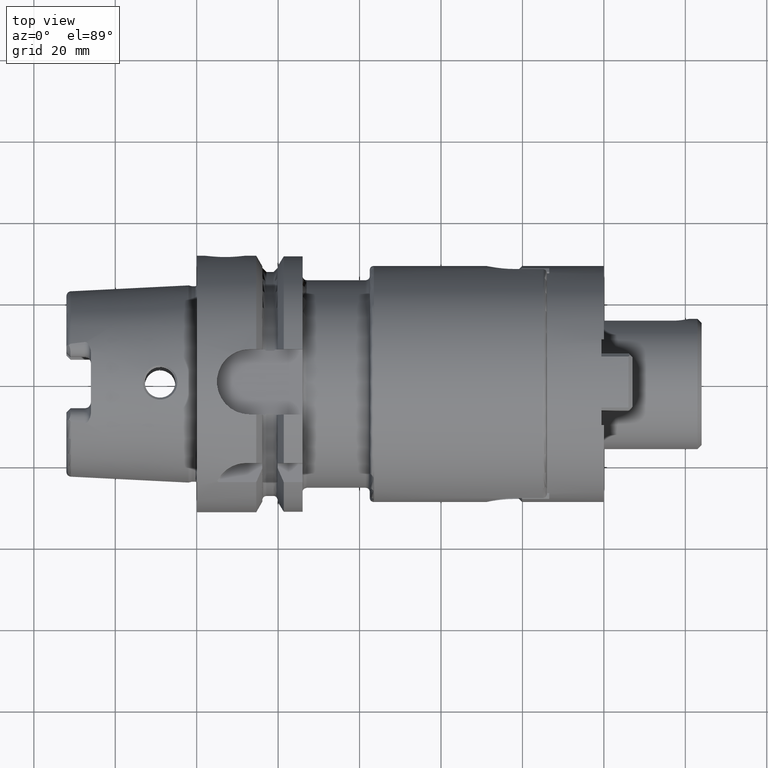
[diagram: clean part render]
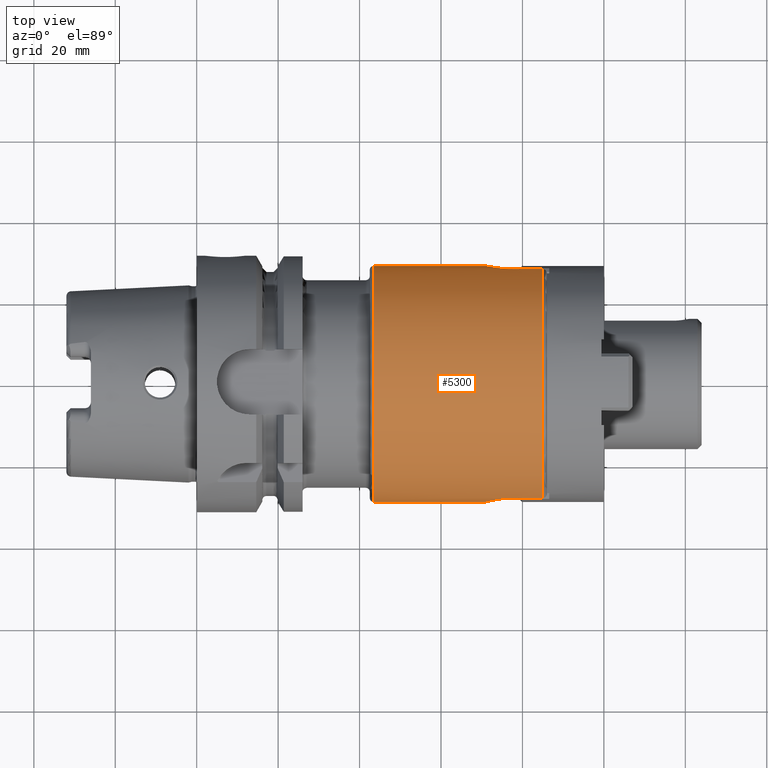
[diagram: same view with one face highlighted and labeled with its STEP entity id]
A machine part, top view. The second image highlights one B-rep face of the part: STEP entity #5300.
In plain terms, the highlighted cylindrical surface (partial cylindrical patch) has radius 29 mm, axis along (1, 0, 0).
Its self-contained STEP definition (entity closure, byte-faithful):
#1513=CARTESIAN_POINT('',(4.35E1,0.E0,0.E0));
#1514=DIRECTION('',(1.E0,0.E0,0.E0));
#1515=DIRECTION('',(0.E0,1.E0,0.E0));
#1516=AXIS2_PLACEMENT_3D('',#1513,#1514,#1515);
#1518=CARTESIAN_POINT('',(7.805E1,2.813001066477E1,7.05E0));
#1519=CARTESIAN_POINT('',(7.776900655547E1,2.813001066477E1,7.05E0));
#1520=CARTESIAN_POINT('',(7.721037658349E1,2.813837687009E1,7.016749676905E0));
#1521=CARTESIAN_POINT('',(7.637512114012E1,2.817581512601E1,6.865641143254E0));
#1522=CARTESIAN_POINT('',(7.556469884006E1,2.823585786882E1,6.615704941775E0));
#1523=CARTESIAN_POINT('',(7.478263891377E1,2.831577611462E1,6.266653400118E0));
#1524=CARTESIAN_POINT('',(7.404844744557E1,2.841030402914E1,5.825563378966E0));
#1525=CARTESIAN_POINT('',(7.336643217082E1,2.851486619548E1,5.292898610357E0));
#1526=CARTESIAN_POINT('',(7.275786607537E1,2.862165826290E1,4.684439074310E0));
#1527=CARTESIAN_POINT('',(7.222514521771E1,2.872543424843E1,4.002545270535E0));
#1528=CARTESIAN_POINT('',(7.178416830068E1,2.881855341471E1,3.268950699602E0));
#1529=CARTESIAN_POINT('',(7.143468525626E1,2.889691723060E1,2.486359021336E0));
#1530=CARTESIAN_POINT('',(7.118472158742E1,2.895543919714E1,1.676359001961E0));
#1531=CARTESIAN_POINT('',(7.103330083314E1,2.899187584106E1,8.403965191555E-1));
#1532=CARTESIAN_POINT('',(7.1E1,2.9E1,2.812016219661E-1));
#1533=CARTESIAN_POINT('',(7.1E1,2.9E1,1.355956455518E-14));
#1535=DIRECTION('',(1.E0,0.E0,0.E0));
#1536=VECTOR('',#1535,6.95E0);
#1537=CARTESIAN_POINT('',(7.805E1,2.813001066477E1,7.05E0));
#1538=LINE('',#1537,#1536);
#1539=CARTESIAN_POINT('',(8.5E1,0.E0,0.E0));
#1540=DIRECTION('',(-1.E0,0.E0,0.E0));
#1541=DIRECTION('',(0.E0,-9.700003677506E-1,2.431034482759E-1));
#1542=AXIS2_PLACEMENT_3D('',#1539,#1540,#1541);
#1544=DIRECTION('',(1.E0,0.E0,0.E0));
#1545=VECTOR('',#1544,6.95E0);
#1546=CARTESIAN_POINT('',(7.805E1,-2.813001066477E1,7.05E0));
#1547=LINE('',#1546,#1545);
#1548=CARTESIAN_POINT('',(7.1E1,-2.9E1,-1.368321328131E-14));
#1549=CARTESIAN_POINT('',(7.1E1,-2.9E1,2.812220679874E-1));
#1550=CARTESIAN_POINT('',(7.103330711335E1,-2.899187432210E1,
8.404467754962E-1));
#1551=CARTESIAN_POINT('',(7.118472684693E1,-2.895543793573E1,1.676379445848E0));
#1552=CARTESIAN_POINT('',(7.143469994552E1,-2.889691385787E1,2.486399055996E0));
#1553=CARTESIAN_POINT('',(7.178418114583E1,-2.881855061333E1,3.268974479794E0));
#1554=CARTESIAN_POINT('',(7.222516446948E1,-2.872543031932E1,4.002573666862E0));
#1555=CARTESIAN_POINT('',(7.275788457570E1,-2.862165486566E1,4.684459317567E0));
#1556=CARTESIAN_POINT('',(7.336644828543E1,-2.851486353950E1,5.292912823822E0));
#1557=CARTESIAN_POINT('',(7.404846414873E1,-2.841030172384E1,5.825574450120E0));
#1558=CARTESIAN_POINT('',(7.478264689309E1,-2.831577521634E1,6.266657373136E0));
#1559=CARTESIAN_POINT('',(7.556470916932E1,-2.823585698224E1,6.615708714385E0));
#1560=CARTESIAN_POINT('',(7.637512335039E1,-2.817581504620E1,6.865641440629E0));
#1561=CARTESIAN_POINT('',(7.721037912692E1,-2.813837678853E1,7.016750011503E0));
#1562=CARTESIAN_POINT('',(7.776900731331E1,-2.813001066477E1,7.05E0));
#1563=CARTESIAN_POINT('',(7.805E1,-2.813001066477E1,7.05E0));
#1570=DIRECTION('',(-1.E0,0.E0,0.E0));
#1571=VECTOR('',#1570,2.75E1);
#1572=CARTESIAN_POINT('',(7.1E1,-2.9E1,-1.368321328131E-14));
#1573=LINE('',#1572,#1571);
#1621=DIRECTION('',(-1.E0,0.E0,0.E0));
#1622=VECTOR('',#1621,2.75E1);
#1623=CARTESIAN_POINT('',(7.1E1,2.9E1,1.355956455518E-14));
#1624=LINE('',#1623,#1622);
#3515=VERTEX_POINT('',#1518);
#3516=VERTEX_POINT('',#1533);
#3517=CARTESIAN_POINT('',(8.5E1,2.813001066477E1,7.05E0));
#3518=VERTEX_POINT('',#3517);
#3532=CARTESIAN_POINT('',(7.805E1,-2.813001066477E1,7.05E0));
#3533=VERTEX_POINT('',#3532);
#3538=VERTEX_POINT('',#1548);
#3539=CARTESIAN_POINT('',(8.5E1,-2.813001066477E1,7.05E0));
#3540=VERTEX_POINT('',#3539);
#3596=CARTESIAN_POINT('',(4.35E1,2.9E1,0.E0));
#3597=CARTESIAN_POINT('',(4.35E1,-2.9E1,0.E0));
#3598=VERTEX_POINT('',#3596);
#3599=VERTEX_POINT('',#3597);
#5278=CARTESIAN_POINT('',(2.11E1,0.E0,0.E0));
#5279=DIRECTION('',(1.E0,0.E0,0.E0));
#5280=DIRECTION('',(0.E0,-1.E0,0.E0));
#5281=AXIS2_PLACEMENT_3D('',#5278,#5279,#5280);
#5282=CYLINDRICAL_SURFACE('',#5281,2.9E1);
#5283=ORIENTED_EDGE('',*,*,#5268,.F.);
#5285=ORIENTED_EDGE('',*,*,#5284,.F.);
#5287=ORIENTED_EDGE('',*,*,#5286,.F.);
#5289=ORIENTED_EDGE('',*,*,#5288,.T.);
#5291=ORIENTED_EDGE('',*,*,#5290,.F.);
#5293=ORIENTED_EDGE('',*,*,#5292,.F.);
#5295=ORIENTED_EDGE('',*,*,#5294,.F.);
#5297=ORIENTED_EDGE('',*,*,#5296,.T.);
#5298=EDGE_LOOP('',(#5283,#5285,#5287,#5289,#5291,#5293,#5295,#5297));
#5299=FACE_OUTER_BOUND('',#5298,.F.);
#5300=ADVANCED_FACE('',(#5299),#5282,.T.);
#1517=CIRCLE('',#1516,2.9E1);
#1534=B_SPLINE_CURVE_WITH_KNOTS('',3,(#1518,#1519,#1520,#1521,#1522,#1523,#1524,
#1525,#1526,#1527,#1528,#1529,#1530,#1531,#1532,#1533),.UNSPECIFIED.,.F.,.F.,(4,
1,1,1,1,1,1,1,1,1,1,1,1,4),(0.E0,7.692307692308E-2,1.538461538462E-1,
2.307692307692E-1,3.076923076923E-1,3.846153846154E-1,4.615384615385E-1,
5.384615384615E-1,6.153846153846E-1,6.923076923077E-1,7.692307692308E-1,
8.461538461538E-1,9.230769230769E-1,1.E0),.UNSPECIFIED.);
#1543=CIRCLE('',#1542,2.9E1);
#1564=B_SPLINE_CURVE_WITH_KNOTS('',3,(#1548,#1549,#1550,#1551,#1552,#1553,#1554,
#1555,#1556,#1557,#1558,#1559,#1560,#1561,#1562,#1563),.UNSPECIFIED.,.F.,.F.,(4,
1,1,1,1,1,1,1,1,1,1,1,1,4),(0.E0,7.692307692308E-2,1.538461538462E-1,
2.307692307692E-1,3.076923076923E-1,3.846153846154E-1,4.615384615385E-1,
5.384615384615E-1,6.153846153846E-1,6.923076923077E-1,7.692307692308E-1,
8.461538461538E-1,9.230769230769E-1,1.E0),.UNSPECIFIED.);
#5268=EDGE_CURVE('',#3598,#3599,#1517,.T.);
#5284=EDGE_CURVE('',#3516,#3598,#1624,.T.);
#5286=EDGE_CURVE('',#3515,#3516,#1534,.T.);
#5288=EDGE_CURVE('',#3515,#3518,#1538,.T.);
#5290=EDGE_CURVE('',#3540,#3518,#1543,.T.);
#5292=EDGE_CURVE('',#3533,#3540,#1547,.T.);
#5294=EDGE_CURVE('',#3538,#3533,#1564,.T.);
#5296=EDGE_CURVE('',#3538,#3599,#1573,.T.);